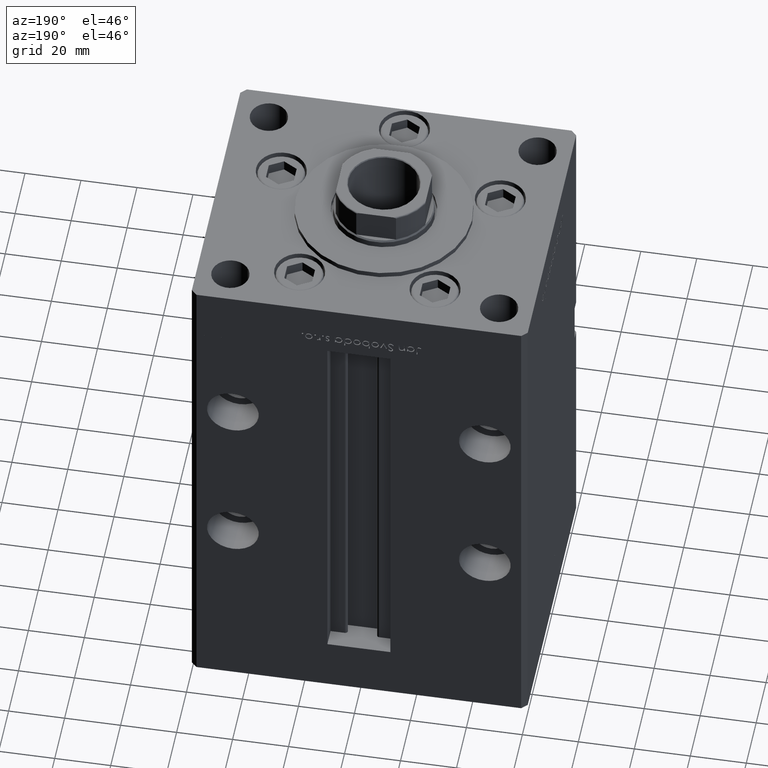
[diagram: clean part render]
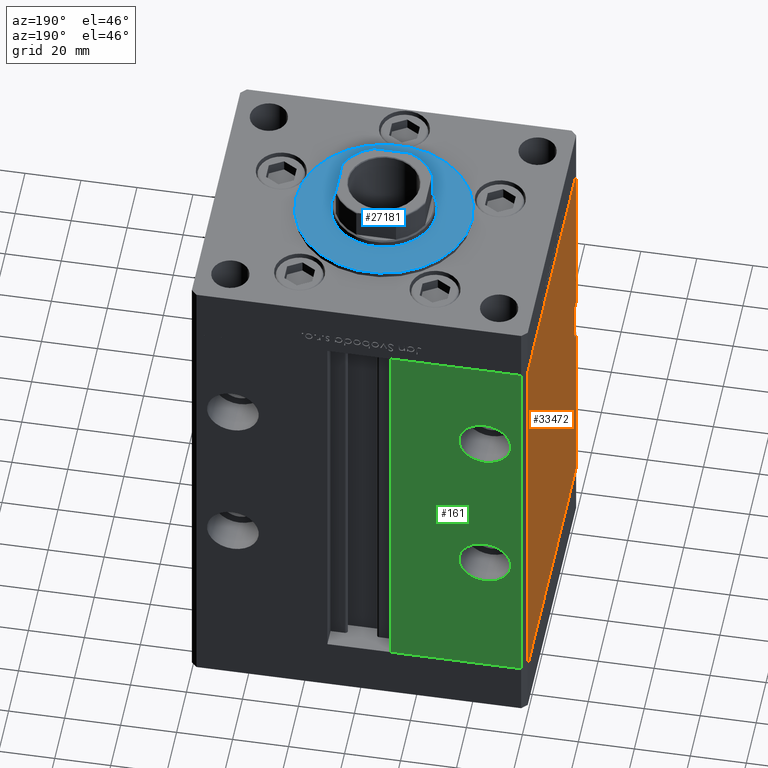
[diagram: same view with three faces highlighted in distinct colors, each labeled with its STEP entity id]
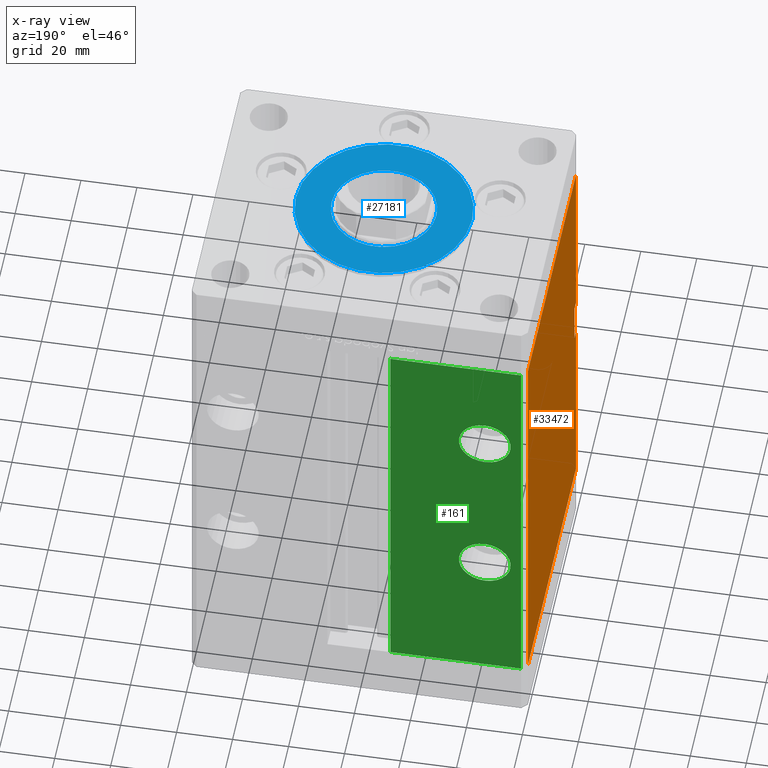
[diagram: x-ray of the same camera — body ghosted, the three highlighted faces saturated]
A machine part, auxiliary view with three faces highlighted in distinct colors.
The next image is the same camera in x-ray (body ghosted, the three faces saturated) — at least one of them is partly hidden behind the body in this view.
Their STEP definitions:

[orange] entity #33472 — the highlighted planar face has unit normal (1, 0, 0).
#704 = VERTEX_POINT ( 'NONE', #10364 ) ;
#733 = DIRECTION ( 'NONE',  ( -2.832201593431522219E-16, 1.000000000000000000, 0.000000000000000000 ) ) ;
#1029 = DIRECTION ( 'NONE',  ( -0.000000000000000000, -1.000000000000000000, -0.000000000000000000 ) ) ;
#3635 = CARTESIAN_POINT ( 'NONE',  ( -59.99999999999998579, -48.99999999999998579, 148.5000000000000000 ) ) ;
#6166 = CARTESIAN_POINT ( 'NONE',  ( -60.00000000000001421, 49.00000000000000000, 148.5000000000000000 ) ) ;
#7118 = LINE ( 'NONE', #47620, #34968 ) ;
#7148 = VECTOR ( 'NONE', #1029, 1000.000000000000000 ) ;
#7620 = VERTEX_POINT ( 'NONE', #11269 ) ;
#9034 = FACE_OUTER_BOUND ( 'NONE', #16626, .T. ) ;
#9238 = CARTESIAN_POINT ( 'NONE',  ( -59.99999999999998579, -45.99999999999999289, 83.99999999999998579 ) ) ;
#9446 = EDGE_CURVE ( 'NONE', #26705, #7620, #21051, .T. ) ;
#9732 = VERTEX_POINT ( 'NONE', #17451 ) ;
#9744 = VECTOR ( 'NONE', #38613, 1000.000000000000000 ) ;
#10364 = CARTESIAN_POINT ( 'NONE',  ( -59.99999999999998579, -48.99999999999998579, 0.000000000000000000 ) ) ;
#10720 = LINE ( 'NONE', #6166, #9744 ) ;
#10859 = CARTESIAN_POINT ( 'NONE',  ( -59.99999999999998579, -45.99999999999999289, 83.99999999999998579 ) ) ;
#10879 = DIRECTION ( 'NONE',  ( 2.832201593431522219E-16, -1.000000000000000000, 0.000000000000000000 ) ) ;
#11269 = CARTESIAN_POINT ( 'NONE',  ( -59.99999999999998579, -45.99999999999999289, 68.99999999999998579 ) ) ;
#11576 = ORIENTED_EDGE ( 'NONE', *, *, #18771, .T. ) ;
#12176 = VECTOR ( 'NONE', #45714, 1000.000000000000000 ) ;
#12232 = CARTESIAN_POINT ( 'NONE',  ( -59.99999999999998579, -48.99999999999998579, 83.99999999999998579 ) ) ;
#13101 = ORIENTED_EDGE ( 'NONE', *, *, #52697, .F. ) ;
#14994 = LINE ( 'NONE', #46923, #21801 ) ;
#15862 = ORIENTED_EDGE ( 'NONE', *, *, #9446, .F. ) ;
#16425 = EDGE_CURVE ( 'NONE', #7620, #9732, #37744, .T. ) ;
#16626 = EDGE_LOOP ( 'NONE', ( #28731, #30266, #15862, #11576, #13101, #49380, #35051, #26900 ) ) ;
#17451 = CARTESIAN_POINT ( 'NONE',  ( -59.99999999999998579, -48.99999999999998579, 68.99999999999998579 ) ) ;
#17570 = VECTOR ( 'NONE', #19998, 1000.000000000000000 ) ;
#17905 = VERTEX_POINT ( 'NONE', #37891 ) ;
#18771 = EDGE_CURVE ( 'NONE', #26705, #19173, #14994, .T. ) ;
#19173 = VERTEX_POINT ( 'NONE', #12232 ) ;
#19970 = CARTESIAN_POINT ( 'NONE',  ( -60.00000000000001421, 49.00000000000000000, 148.5000000000000000 ) ) ;
#19998 = DIRECTION ( 'NONE',  ( -0.000000000000000000, -0.000000000000000000, -1.000000000000000000 ) ) ;
#20577 = AXIS2_PLACEMENT_3D ( 'NONE', #41736, #50316, #733 ) ;
#21051 = LINE ( 'NONE', #9238, #12176 ) ;
#21590 = VECTOR ( 'NONE', #34011, 1000.000000000000000 ) ;
#21711 = CARTESIAN_POINT ( 'NONE',  ( -59.99999999999998579, -48.99999999999998579, 148.5000000000000000 ) ) ;
#21801 = VECTOR ( 'NONE', #23047, 1000.000000000000000 ) ;
#23047 = DIRECTION ( 'NONE',  ( -0.000000000000000000, -1.000000000000000000, -0.000000000000000000 ) ) ;
#23657 = EDGE_CURVE ( 'NONE', #17905, #50304, #40318, .T. ) ;
#24451 = VERTEX_POINT ( 'NONE', #39349 ) ;
#26385 = VECTOR ( 'NONE', #47599, 1000.000000000000000 ) ;
#26705 = VERTEX_POINT ( 'NONE', #10859 ) ;
#26900 = ORIENTED_EDGE ( 'NONE', *, *, #28615, .T. ) ;
#28615 = EDGE_CURVE ( 'NONE', #50304, #704, #7118, .T. ) ;
#28731 = ORIENTED_EDGE ( 'NONE', *, *, #39303, .F. ) ;
#29200 = CARTESIAN_POINT ( 'NONE',  ( -60.00000000000001421, 49.00000000000000000, 0.000000000000000000 ) ) ;
#29682 = PLANE ( 'NONE',  #20577 ) ;
#29707 = CARTESIAN_POINT ( 'NONE',  ( -59.99999999999998579, -45.99999999999999289, 68.99999999999998579 ) ) ;
#30266 = ORIENTED_EDGE ( 'NONE', *, *, #16425, .F. ) ;
#33472 = ADVANCED_FACE ( 'NONE', ( #9034 ), #29682, .F. ) ;
#34011 = DIRECTION ( 'NONE',  ( -0.000000000000000000, -0.000000000000000000, -1.000000000000000000 ) ) ;
#34968 = VECTOR ( 'NONE', #10879, 1000.000000000000000 ) ;
#35051 = ORIENTED_EDGE ( 'NONE', *, *, #23657, .T. ) ;
#37744 = LINE ( 'NONE', #29707, #7148 ) ;
#37891 = CARTESIAN_POINT ( 'NONE',  ( -60.00000000000001421, 49.00000000000000000, 148.5000000000000000 ) ) ;
#38613 = DIRECTION ( 'NONE',  ( 2.832201593431522219E-16, -1.000000000000000000, 0.000000000000000000 ) ) ;
#39303 = EDGE_CURVE ( 'NONE', #9732, #704, #41791, .T. ) ;
#39349 = CARTESIAN_POINT ( 'NONE',  ( -59.99999999999998579, -48.99999999999998579, 148.5000000000000000 ) ) ;
#40318 = LINE ( 'NONE', #19970, #26385 ) ;
#40351 = LINE ( 'NONE', #3635, #17570 ) ;
#41736 = CARTESIAN_POINT ( 'NONE',  ( -60.00000000000001421, 49.00000000000000000, 148.5000000000000000 ) ) ;
#41791 = LINE ( 'NONE', #21711, #21590 ) ;
#45714 = DIRECTION ( 'NONE',  ( 0.000000000000000000, 0.000000000000000000, -1.000000000000000000 ) ) ;
#46923 = CARTESIAN_POINT ( 'NONE',  ( -59.99999999999998579, -45.99999999999999289, 83.99999999999998579 ) ) ;
#47599 = DIRECTION ( 'NONE',  ( -0.000000000000000000, -0.000000000000000000, -1.000000000000000000 ) ) ;
#47620 = CARTESIAN_POINT ( 'NONE',  ( -60.00000000000001421, 49.00000000000000000, 0.000000000000000000 ) ) ;
#48211 = EDGE_CURVE ( 'NONE', #17905, #24451, #10720, .T. ) ;
#49380 = ORIENTED_EDGE ( 'NONE', *, *, #48211, .F. ) ;
#50304 = VERTEX_POINT ( 'NONE', #29200 ) ;
#50316 = DIRECTION ( 'NONE',  ( 1.000000000000000000, 2.832201593431522219E-16, -0.000000000000000000 ) ) ;
#52697 = EDGE_CURVE ( 'NONE', #24451, #19173, #40351, .T. ) ;

[blue] entity #27181 — the highlighted planar face has unit normal (0, 0, 1).
#123 = AXIS2_PLACEMENT_3D ( 'NONE', #8292, #28680, #8036 ) ;
#203 = ORIENTED_EDGE ( 'NONE', *, *, #6898, .F. ) ;
#660 = ORIENTED_EDGE ( 'NONE', *, *, #49920, .F. ) ;
#1246 = CARTESIAN_POINT ( 'NONE',  ( 0.000000000000000000, -6.938893903907228378E-15, 2.000000000000000000 ) ) ;
#2023 = AXIS2_PLACEMENT_3D ( 'NONE', #1246, #35245, #22149 ) ;
#3728 = CIRCLE ( 'NONE', #2023, 31.50000000000000000 ) ;
#3809 = DIRECTION ( 'NONE',  ( 1.000000000000000000, 0.000000000000000000, 0.000000000000000000 ) ) ;
#5431 = CARTESIAN_POINT ( 'NONE',  ( 0.000000000000000000, -6.938893903907228378E-15, 2.000000000000000000 ) ) ;
#5663 = FACE_BOUND ( 'NONE', #26760, .T. ) ;
#5668 = CARTESIAN_POINT ( 'NONE',  ( -31.50000000000000000, -6.938893903907228378E-15, 2.000000000000000000 ) ) ;
#6898 = EDGE_CURVE ( 'NONE', #40334, #18839, #42067, .T. ) ;
#8036 = DIRECTION ( 'NONE',  ( 1.000000000000000000, 0.000000000000000000, 0.000000000000000000 ) ) ;
#8292 = CARTESIAN_POINT ( 'NONE',  ( 0.000000000000000000, -6.938893903907228378E-15, 2.000000000000000000 ) ) ;
#8900 = AXIS2_PLACEMENT_3D ( 'NONE', #36522, #44036, #3809 ) ;
#12577 = VERTEX_POINT ( 'NONE', #5668 ) ;
#13526 = EDGE_LOOP ( 'NONE', ( #42042, #36059 ) ) ;
#14200 = CARTESIAN_POINT ( 'NONE',  ( 18.75000000000000355, -6.938893903907228378E-15, 2.000000000000000000 ) ) ;
#17492 = CARTESIAN_POINT ( 'NONE',  ( 0.000000000000000000, -6.938893903907228378E-15, 2.000000000000000000 ) ) ;
#18839 = VERTEX_POINT ( 'NONE', #36688 ) ;
#20355 = AXIS2_PLACEMENT_3D ( 'NONE', #17492, #26584, #21502 ) ;
#21502 = DIRECTION ( 'NONE',  ( 1.000000000000000000, 0.000000000000000000, -0.000000000000000000 ) ) ;
#22063 = DIRECTION ( 'NONE',  ( 0.000000000000000000, 0.000000000000000000, 1.000000000000000000 ) ) ;
#22149 = DIRECTION ( 'NONE',  ( 1.000000000000000000, 0.000000000000000000, 0.000000000000000000 ) ) ;
#26584 = DIRECTION ( 'NONE',  ( 0.000000000000000000, 0.000000000000000000, 1.000000000000000000 ) ) ;
#26760 = EDGE_LOOP ( 'NONE', ( #203, #660 ) ) ;
#27181 = ADVANCED_FACE ( 'NONE', ( #5663, #41856 ), #34340, .T. ) ;
#28680 = DIRECTION ( 'NONE',  ( 0.000000000000000000, 0.000000000000000000, 1.000000000000000000 ) ) ;
#31174 = CIRCLE ( 'NONE', #8900, 18.75000000000000355 ) ;
#31863 = CARTESIAN_POINT ( 'NONE',  ( 31.50000000000000000, -3.081256486593065689E-15, 2.000000000000000000 ) ) ;
#33304 = DIRECTION ( 'NONE',  ( 1.000000000000000000, 0.000000000000000000, 0.000000000000000000 ) ) ;
#34340 = PLANE ( 'NONE',  #20355 ) ;
#34654 = CIRCLE ( 'NONE', #50046, 31.50000000000000000 ) ;
#35245 = DIRECTION ( 'NONE',  ( 0.000000000000000000, 0.000000000000000000, 1.000000000000000000 ) ) ;
#36059 = ORIENTED_EDGE ( 'NONE', *, *, #51187, .T. ) ;
#36522 = CARTESIAN_POINT ( 'NONE',  ( 0.000000000000000000, -6.938893903907228378E-15, 2.000000000000000000 ) ) ;
#36688 = CARTESIAN_POINT ( 'NONE',  ( -18.75000000000000355, -4.642681155505941194E-15, 2.000000000000000000 ) ) ;
#36843 = VERTEX_POINT ( 'NONE', #31863 ) ;
#40334 = VERTEX_POINT ( 'NONE', #14200 ) ;
#41856 = FACE_OUTER_BOUND ( 'NONE', #13526, .T. ) ;
#42042 = ORIENTED_EDGE ( 'NONE', *, *, #48790, .T. ) ;
#42067 = CIRCLE ( 'NONE', #123, 18.75000000000000355 ) ;
#44036 = DIRECTION ( 'NONE',  ( 0.000000000000000000, 0.000000000000000000, 1.000000000000000000 ) ) ;
#48790 = EDGE_CURVE ( 'NONE', #12577, #36843, #3728, .T. ) ;
#49920 = EDGE_CURVE ( 'NONE', #18839, #40334, #31174, .T. ) ;
#50046 = AXIS2_PLACEMENT_3D ( 'NONE', #5431, #22063, #33304 ) ;
#51187 = EDGE_CURVE ( 'NONE', #36843, #12577, #34654, .T. ) ;

[green] entity #161 — the highlighted planar face has unit normal (0, -1, 0).
#136 = CARTESIAN_POINT ( 'NONE',  ( -11.24999999999999822, 51.00000000000000711, 0.000000000000000000 ) ) ;
#161 = ADVANCED_FACE ( 'NONE', ( #37857, #37317, #45107 ), #29291, .F. ) ;
#772 = EDGE_CURVE ( 'NONE', #25709, #27556, #32049, .T. ) ;
#908 = VECTOR ( 'NONE', #5378, 1000.000000000000000 ) ;
#1264 = DIRECTION ( 'NONE',  ( -0.000000000000000000, -0.000000000000000000, -1.000000000000000000 ) ) ;
#2665 = EDGE_CURVE ( 'NONE', #10536, #39789, #40208, .T. ) ;
#2790 = CARTESIAN_POINT ( 'NONE',  ( -45.00000000000000000, 51.00000000000000711, 120.7500000000000000 ) ) ;
#3296 = CARTESIAN_POINT ( 'NONE',  ( -45.00000000000000000, 51.00000000000000711, 42.24999999999999289 ) ) ;
#3645 = ORIENTED_EDGE ( 'NONE', *, *, #47386, .T. ) ;
#4509 = DIRECTION ( 'NONE',  ( 0.000000000000000000, 1.000000000000000000, 0.000000000000000000 ) ) ;
#5054 = VERTEX_POINT ( 'NONE', #35398 ) ;
#5378 = DIRECTION ( 'NONE',  ( -0.000000000000000000, -0.000000000000000000, 1.000000000000000000 ) ) ;
#5438 = DIRECTION ( 'NONE',  ( 0.000000000000000000, 0.000000000000000000, -1.000000000000000000 ) ) ;
#7104 = CARTESIAN_POINT ( 'NONE',  ( -45.00000000000000000, 51.00000000000000711, 60.75000000000000000 ) ) ;
#7839 = ORIENTED_EDGE ( 'NONE', *, *, #35991, .F. ) ;
#8009 = DIRECTION ( 'NONE',  ( 0.000000000000000000, 0.000000000000000000, -1.000000000000000000 ) ) ;
#8655 = DIRECTION ( 'NONE',  ( 0.000000000000000000, 1.000000000000000000, -0.000000000000000000 ) ) ;
#10536 = VERTEX_POINT ( 'NONE', #3296 ) ;
#12415 = AXIS2_PLACEMENT_3D ( 'NONE', #20604, #4509, #46067 ) ;
#16757 = VERTEX_POINT ( 'NONE', #2790 ) ;
#17004 = EDGE_LOOP ( 'NONE', ( #24587, #51924 ) ) ;
#17978 = VECTOR ( 'NONE', #24011, 1000.000000000000000 ) ;
#18136 = CIRCLE ( 'NONE', #42968, 9.249999999999994671 ) ;
#18407 = LINE ( 'NONE', #51623, #25997 ) ;
#19428 = EDGE_LOOP ( 'NONE', ( #28021, #24387 ) ) ;
#20604 = CARTESIAN_POINT ( 'NONE',  ( -45.00000000000000000, 51.00000000000000711, 51.50000000000000000 ) ) ;
#21911 = CARTESIAN_POINT ( 'NONE',  ( -57.99999999999999289, 51.00000000000000711, 148.5000000000000000 ) ) ;
#24011 = DIRECTION ( 'NONE',  ( -1.000000000000000000, 0.000000000000000000, 0.000000000000000000 ) ) ;
#24387 = ORIENTED_EDGE ( 'NONE', *, *, #42889, .F. ) ;
#24587 = ORIENTED_EDGE ( 'NONE', *, *, #51780, .F. ) ;
#25538 = DIRECTION ( 'NONE',  ( 0.000000000000000000, -0.000000000000000000, -1.000000000000000000 ) ) ;
#25709 = VERTEX_POINT ( 'NONE', #136 ) ;
#25997 = VECTOR ( 'NONE', #47604, 1000.000000000000000 ) ;
#26480 = AXIS2_PLACEMENT_3D ( 'NONE', #45913, #44848, #25538 ) ;
#27377 = DIRECTION ( 'NONE',  ( 0.000000000000000000, 0.000000000000000000, 1.000000000000000000 ) ) ;
#27556 = VERTEX_POINT ( 'NONE', #45226 ) ;
#27654 = EDGE_CURVE ( 'NONE', #44382, #27556, #38508, .T. ) ;
#28021 = ORIENTED_EDGE ( 'NONE', *, *, #36241, .F. ) ;
#29291 = PLANE ( 'NONE',  #26480 ) ;
#31871 = CARTESIAN_POINT ( 'NONE',  ( -45.00000000000000000, 51.00000000000000711, 111.5000000000000000 ) ) ;
#32049 = LINE ( 'NONE', #32839, #17978 ) ;
#32839 = CARTESIAN_POINT ( 'NONE',  ( -11.24999999999999822, 51.00000000000000711, 0.000000000000000000 ) ) ;
#34927 = VECTOR ( 'NONE', #1264, 1000.000000000000000 ) ;
#35186 = AXIS2_PLACEMENT_3D ( 'NONE', #31871, #44741, #8009 ) ;
#35398 = CARTESIAN_POINT ( 'NONE',  ( -11.24999999999999822, 51.00000000000000711, 148.5000000000000000 ) ) ;
#35409 = CARTESIAN_POINT ( 'NONE',  ( -45.00000000000000000, 51.00000000000000711, 51.50000000000000000 ) ) ;
#35991 = EDGE_CURVE ( 'NONE', #25709, #5054, #45330, .T. ) ;
#36241 = EDGE_CURVE ( 'NONE', #16757, #37761, #43764, .T. ) ;
#37317 = FACE_BOUND ( 'NONE', #17004, .T. ) ;
#37761 = VERTEX_POINT ( 'NONE', #43497 ) ;
#37857 = FACE_BOUND ( 'NONE', #19428, .T. ) ;
#38302 = ORIENTED_EDGE ( 'NONE', *, *, #27654, .F. ) ;
#38508 = LINE ( 'NONE', #21911, #34927 ) ;
#39789 = VERTEX_POINT ( 'NONE', #7104 ) ;
#40208 = CIRCLE ( 'NONE', #42841, 9.250000000000001776 ) ;
#42166 = CARTESIAN_POINT ( 'NONE',  ( -45.00000000000000000, 51.00000000000000711, 111.5000000000000000 ) ) ;
#42841 = AXIS2_PLACEMENT_3D ( 'NONE', #35409, #52815, #27377 ) ;
#42889 = EDGE_CURVE ( 'NONE', #37761, #16757, #18136, .T. ) ;
#42968 = AXIS2_PLACEMENT_3D ( 'NONE', #42166, #8655, #5438 ) ;
#43497 = CARTESIAN_POINT ( 'NONE',  ( -45.00000000000000000, 51.00000000000000711, 102.2500000000000142 ) ) ;
#43764 = CIRCLE ( 'NONE', #35186, 9.249999999999994671 ) ;
#44382 = VERTEX_POINT ( 'NONE', #48686 ) ;
#44741 = DIRECTION ( 'NONE',  ( 0.000000000000000000, 1.000000000000000000, -0.000000000000000000 ) ) ;
#44848 = DIRECTION ( 'NONE',  ( 0.000000000000000000, -1.000000000000000000, 0.000000000000000000 ) ) ;
#45107 = FACE_OUTER_BOUND ( 'NONE', #48103, .T. ) ;
#45226 = CARTESIAN_POINT ( 'NONE',  ( -57.99999999999999289, 51.00000000000000711, 0.000000000000000000 ) ) ;
#45330 = LINE ( 'NONE', #49890, #908 ) ;
#45913 = CARTESIAN_POINT ( 'NONE',  ( -11.24999999999999822, 51.00000000000000711, 148.5000000000000000 ) ) ;
#46067 = DIRECTION ( 'NONE',  ( 0.000000000000000000, 0.000000000000000000, 1.000000000000000000 ) ) ;
#47066 = ORIENTED_EDGE ( 'NONE', *, *, #772, .T. ) ;
#47386 = EDGE_CURVE ( 'NONE', #44382, #5054, #18407, .T. ) ;
#47604 = DIRECTION ( 'NONE',  ( 1.000000000000000000, 0.000000000000000000, 0.000000000000000000 ) ) ;
#48103 = EDGE_LOOP ( 'NONE', ( #3645, #7839, #47066, #38302 ) ) ;
#48355 = CIRCLE ( 'NONE', #12415, 9.250000000000001776 ) ;
#48686 = CARTESIAN_POINT ( 'NONE',  ( -57.99999999999999289, 51.00000000000000711, 148.5000000000000000 ) ) ;
#49890 = CARTESIAN_POINT ( 'NONE',  ( -11.24999999999999822, 51.00000000000000711, 0.000000000000000000 ) ) ;
#51623 = CARTESIAN_POINT ( 'NONE',  ( -11.24999999999999822, 51.00000000000000711, 148.5000000000000000 ) ) ;
#51780 = EDGE_CURVE ( 'NONE', #39789, #10536, #48355, .T. ) ;
#51924 = ORIENTED_EDGE ( 'NONE', *, *, #2665, .F. ) ;
#52815 = DIRECTION ( 'NONE',  ( 0.000000000000000000, 1.000000000000000000, 0.000000000000000000 ) ) ;